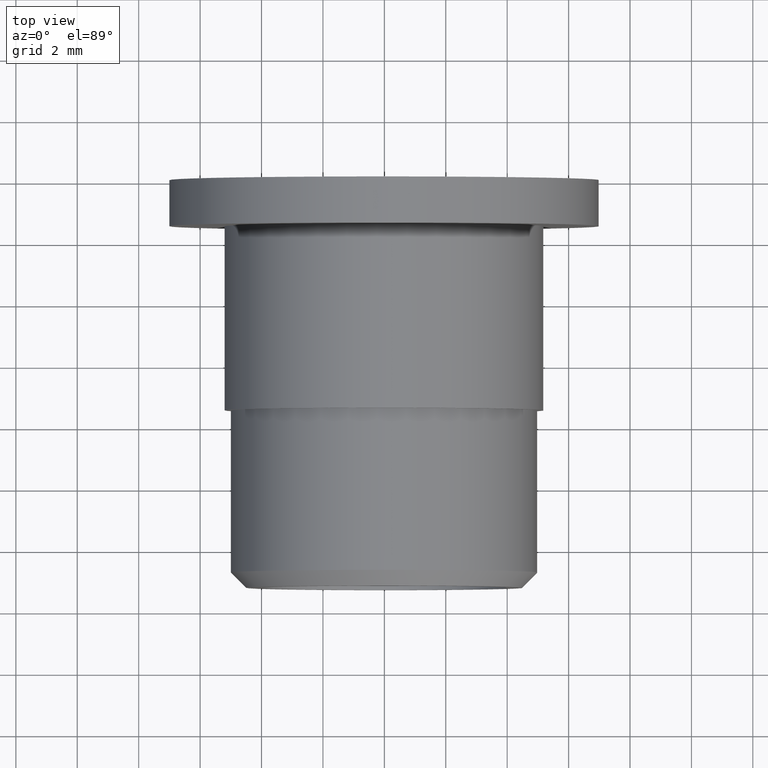
[diagram: clean part render]
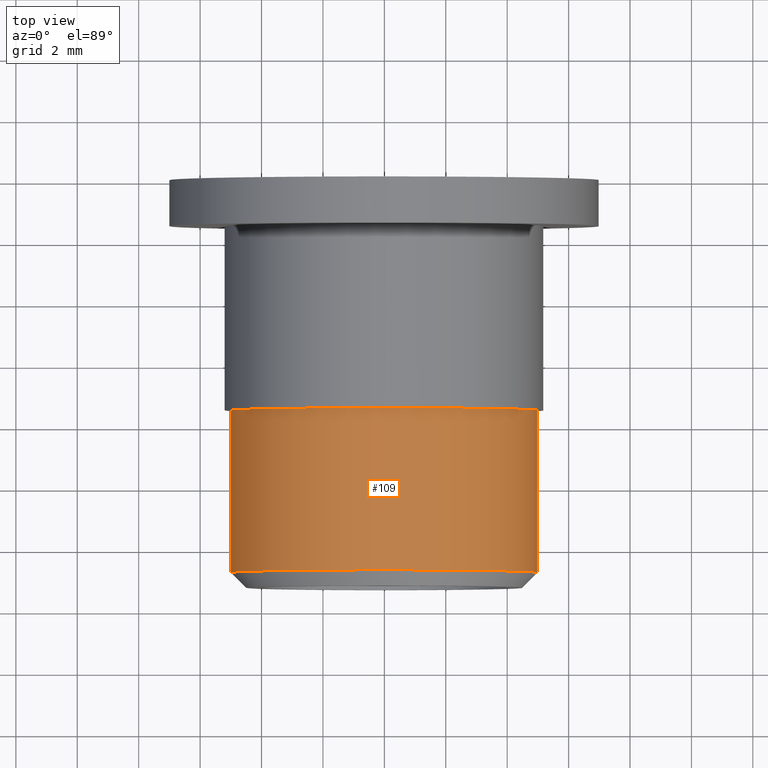
[diagram: same view with one face highlighted and labeled with its STEP entity id]
A machine part, top view. The second image highlights one B-rep face of the part: STEP entity #109.
In plain terms, the highlighted cylindrical surface (bore or boss wall) has radius 5 mm, axis along (0, 1, 0).
Its self-contained STEP definition (entity closure, byte-faithful):
#17=CYLINDRICAL_SURFACE('',#125,5.);
#24=FACE_BOUND('',#47,.T.);
#33=FACE_OUTER_BOUND('',#46,.T.);
#46=EDGE_LOOP('',(#91));
#47=EDGE_LOOP('',(#92));
#60=CIRCLE('',#124,5.);
#61=CIRCLE('',#126,5.);
#69=VERTEX_POINT('',#185);
#70=VERTEX_POINT('',#188);
#78=EDGE_CURVE('',#69,#69,#60,.T.);
#79=EDGE_CURVE('',#70,#70,#61,.T.);
#91=ORIENTED_EDGE('',*,*,#79,.F.);
#92=ORIENTED_EDGE('',*,*,#78,.T.);
#109=ADVANCED_FACE('',(#33,#24),#17,.T.);
#124=AXIS2_PLACEMENT_3D('',#186,#152,#153);
#125=AXIS2_PLACEMENT_3D('',#187,#154,#155);
#126=AXIS2_PLACEMENT_3D('',#189,#156,#157);
#152=DIRECTION('center_axis',(0.,1.,0.));
#153=DIRECTION('ref_axis',(-1.,0.,0.));
#154=DIRECTION('center_axis',(0.,1.,0.));
#155=DIRECTION('ref_axis',(-1.,0.,0.));
#156=DIRECTION('center_axis',(0.,1.,0.));
#157=DIRECTION('ref_axis',(-1.,0.,0.));
#185=CARTESIAN_POINT('',(-5.,1.22099243297363,0.));
#186=CARTESIAN_POINT('Origin',(0.,1.22099243297363,0.));
#187=CARTESIAN_POINT('Origin',(0.,3.86049621648681,0.));
#188=CARTESIAN_POINT('',(-5.,6.5,0.));
#189=CARTESIAN_POINT('Origin',(0.,6.5,0.));